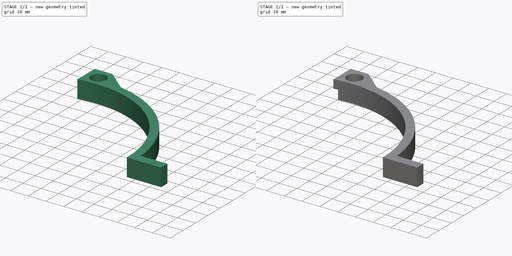
[diagram: build sequence overview — one tinted view per stage of 2, left to right]
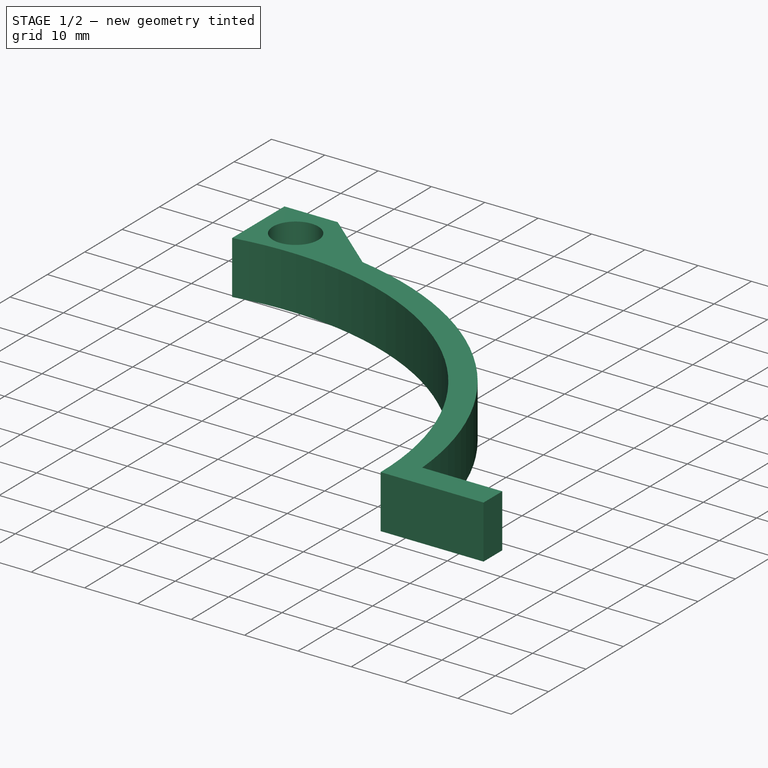
[diagram: stage 1 of 2 — iso view after this stage's code; geometry added in this stage tinted green]
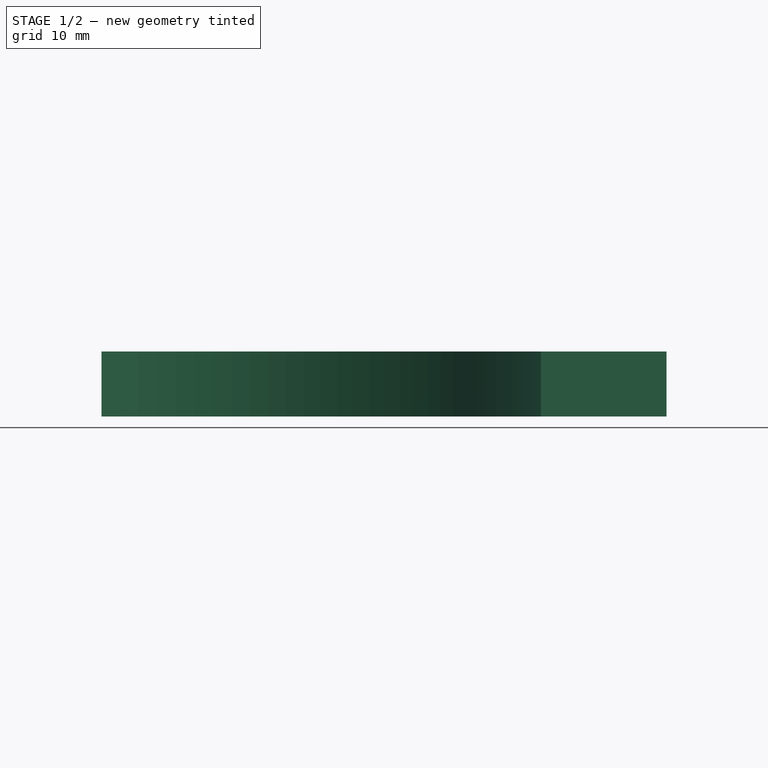
[diagram: stage 1 of 2 — front view after this stage's code; geometry added in this stage tinted green]
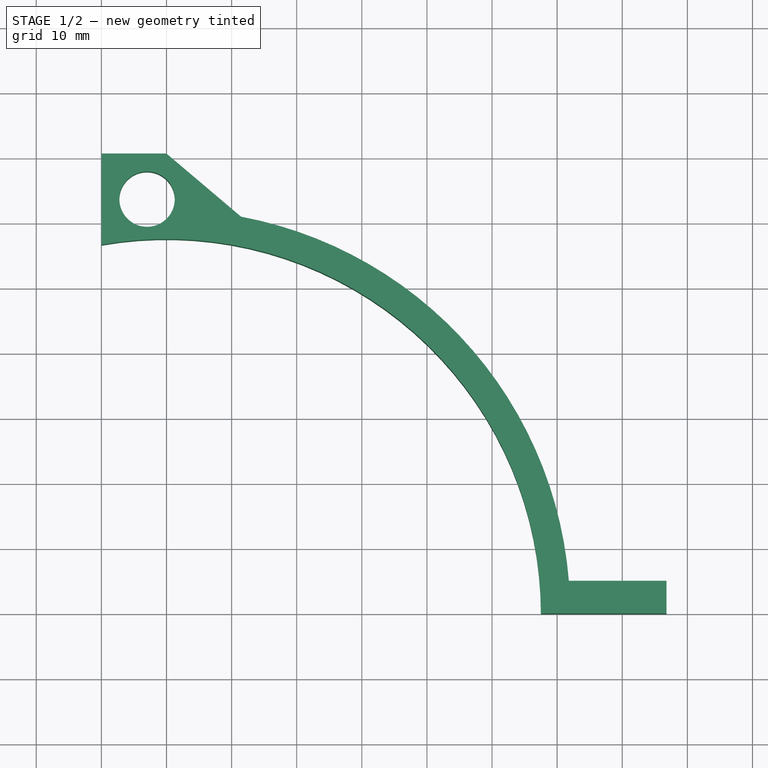
[diagram: stage 1 of 2 — top view after this stage's code; geometry added in this stage tinted green]
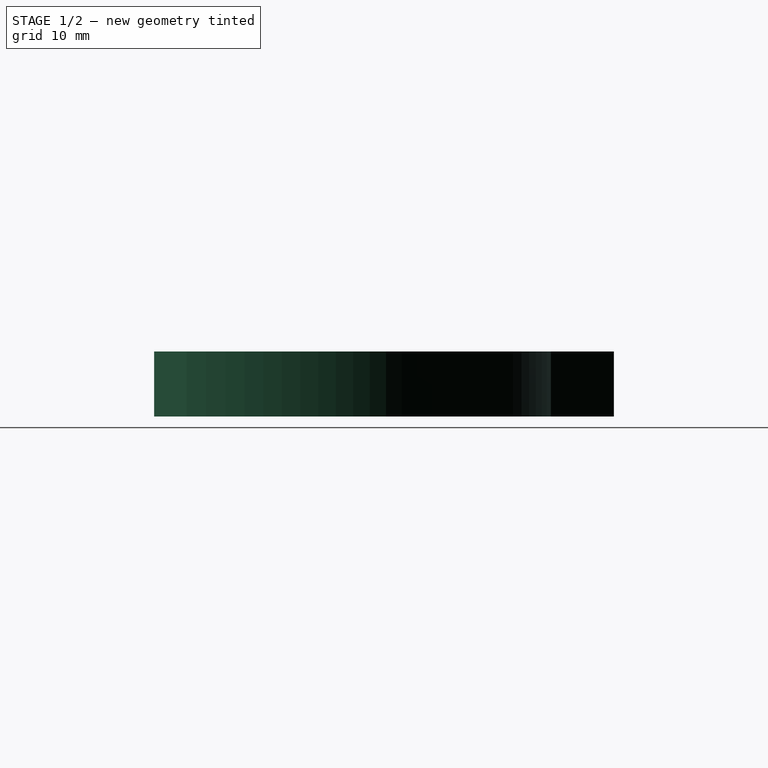
[diagram: stage 1 of 2 — right view after this stage's code; geometry added in this stage tinted green]
FCSTD DOCUMENT  (FreeCAD 1.0R39109 (Git))
Label: close_winds1
License: All rights reserved
LicenseURL: https://en.wikipedia.org/wiki/All_rights_reserved
objects: Sketcher::SketchObject×2, PartDesign::Pad×1, PartDesign::Pocket×1, PartDesign::Body×1
note: 11 computed .brp shape members not serialized (recipe doc carries the construction recipe); baked Part::Feature solids carry a one-line shape summary decoded from their .brp

FEATURE [Sketcher::SketchObject] Sketch
  ArcFitTolerance = 1e-06
  AttachmentSupport = -> [XY_Plane]
  FullyConstrained = true
  MakeInternals = false
  MapMode = 5
  sketch-geometry (9):
    g0: ArcOfCircle CenterX=0 CenterY=0 CenterZ=0 NormalX=0 NormalY=0 NormalZ=1 AngleXU=0 Radius=57.5 StartAngle=0 EndAngle=1.74533
    g1: ArcOfCircle CenterX=0 CenterY=0 CenterZ=0 NormalX=0 NormalY=0 NormalZ=1 AngleXU=0 Radius=62 StartAngle=0.0807328 EndAngle=1.38509
    g2: LineSegment StartX=-9.98477 StartY=56.6264 StartZ=0 EndX=-9.98477 EndY=70.6264 EndZ=0
    g3: Circle CenterX=-2.98477 CenterY=63.6264 CenterZ=0 NormalX=0 NormalY=0 NormalZ=1 AngleXU=0 Radius=4.25
    g4: LineSegment StartX=0 StartY=70.6264 StartZ=0 EndX=11.4479 EndY=60.9339 EndZ=0
    g5: LineSegment StartX=0 StartY=70.6264 StartZ=0 EndX=-9.98477 EndY=70.6264 EndZ=0
    g6: LineSegment StartX=61.7981 StartY=5 StartZ=0 EndX=76.7981 EndY=5 EndZ=0
    g7: LineSegment StartX=76.7981 StartY=5 StartZ=0 EndX=76.7981 EndY=0 EndZ=0
    g8: LineSegment StartX=76.7981 StartY=0 StartZ=0 EndX=57.5 EndY=0 EndZ=0
  constraints (27):
    c: PointOnObject(g0,g-1)
    c: Radius(g0) = 57.5
    c: Coincident(g1,g-1)
    c: Radius(g1) = 62
    c: Coincident(g0,g1)
    c: Coincident(g2,g0)
    c: Vertical(g2)
    c: Diameter(g3) = 8.5
    c: DistanceY(g3,g2) = 7
    c: DistanceX(g2,g3) = 7
    c: Coincident(g4,g1)
    c: Coincident(g5,g4)
    c: Coincident(g5,g2)
    c: Horizontal(g5)
    c: PointOnObject(g4,g-2)
    c: Angle(g0) = 1.74533
    c: DistanceY(g2,g2) = 14
    c: Distance(g4,g4) = 15
    c: Horizontal(g6)
    c: Coincident(g6,g7)
    c: PointOnObject(g7,g-1)
    c: Vertical(g7)
    c: Coincident(g7,g8)
    c: Coincident(g1,g6)
    c: DistanceY(g7,g7) = 5
    c: DistanceX(g6,g6) = 15
    c: Coincident(g8,g0)
FEATURE [PartDesign::Pad] Pad
  Direction = (0,0,1)
  Length = 10
  Length2 = 10
  Profile = -> Sketch
  ReferenceAxis = -> Sketch [N_Axis]
  Refine = true
  Suppressed = false
  Type = 0
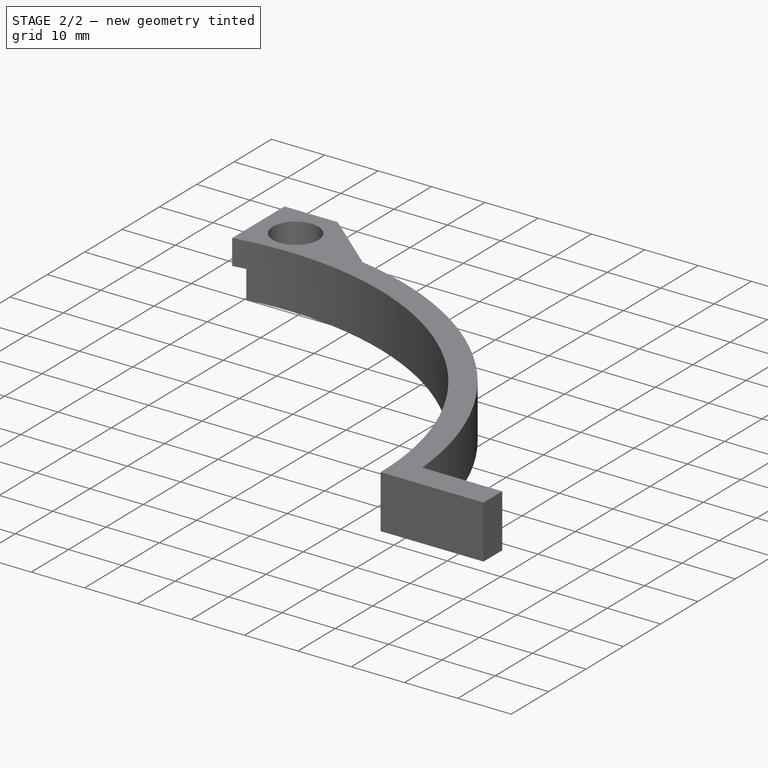
[diagram: stage 2 of 2 — iso view after this stage's code; geometry added in this stage tinted green]
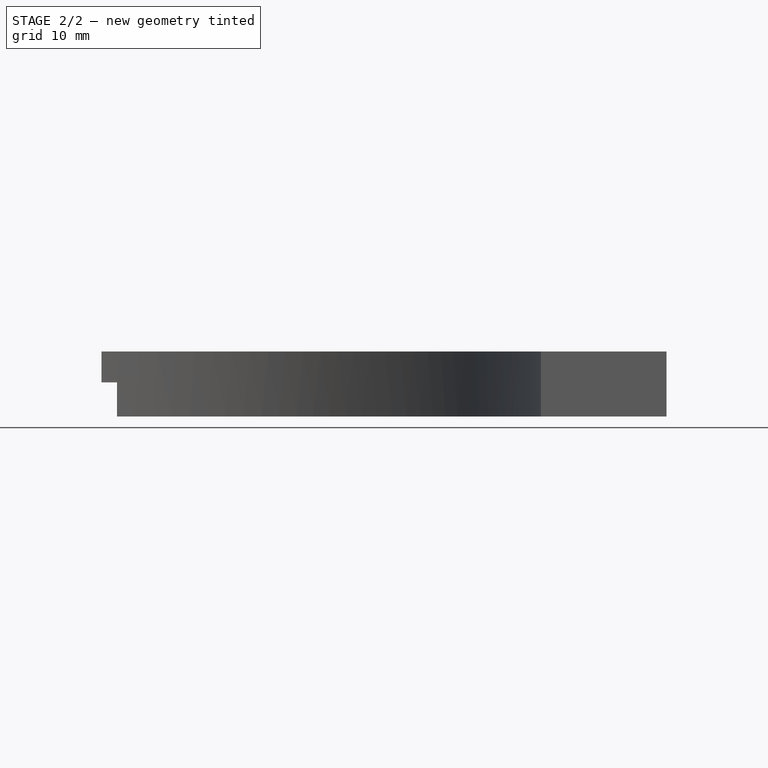
[diagram: stage 2 of 2 — front view after this stage's code; geometry added in this stage tinted green]
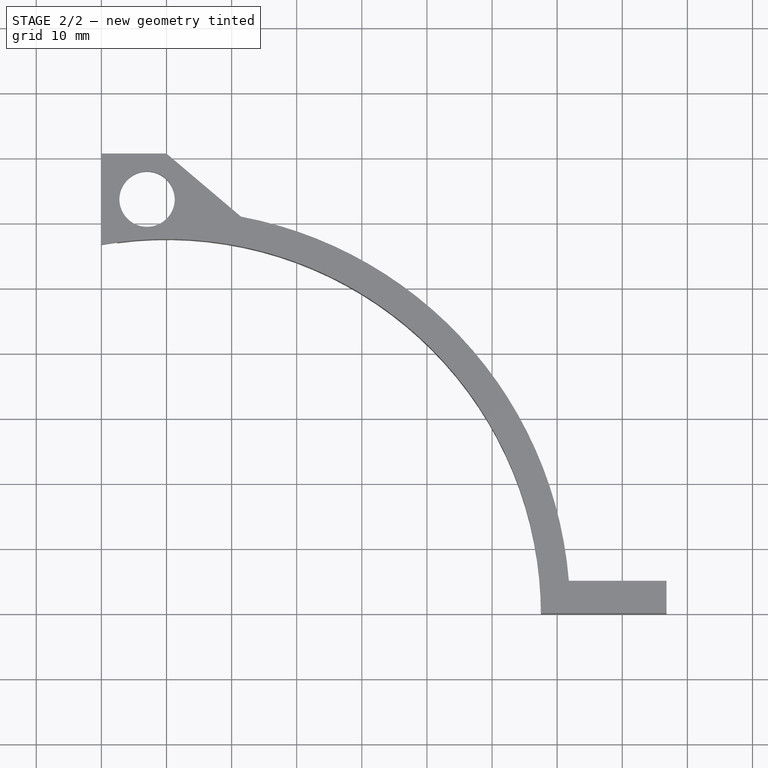
[diagram: stage 2 of 2 — top view after this stage's code; geometry added in this stage tinted green]
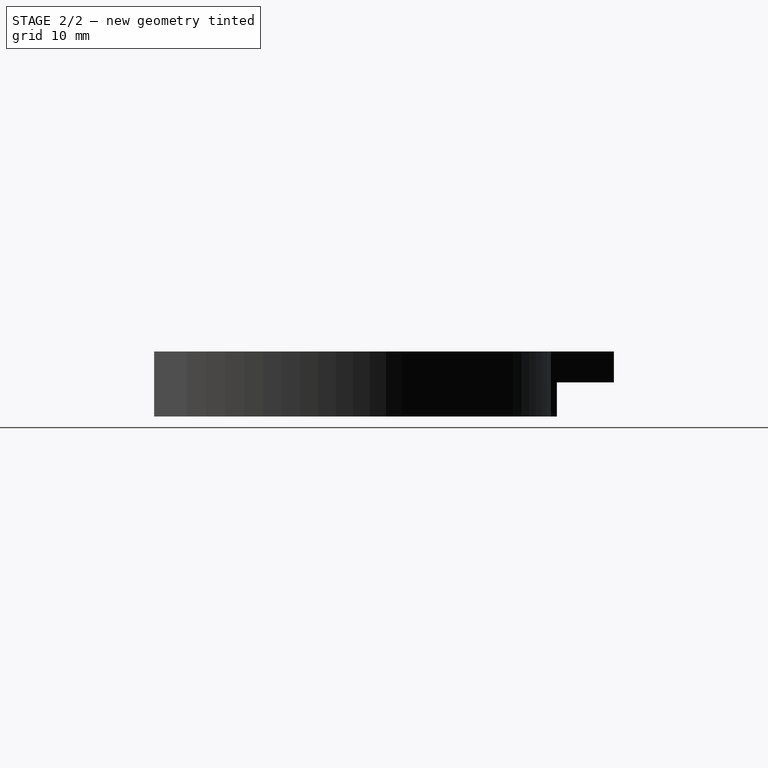
[diagram: stage 2 of 2 — right view after this stage's code; geometry added in this stage tinted green]
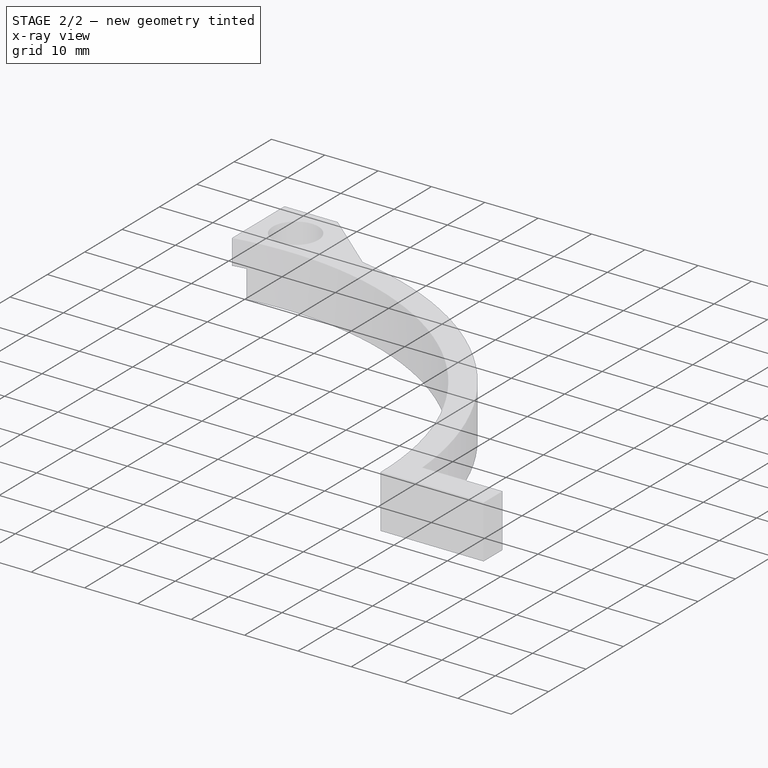
[diagram: stage 2 of 2 — x-ray composite at the iso view; earlier geometry ghosted, this stage's added geometry solid]
FEATURE [Sketcher::SketchObject] Sketch001
  ArcFitTolerance = 1e-06
  AttachmentSupport = -> [Pad]
  FullyConstrained = true
  MakeInternals = false
  MapMode = 5
  Placement = pos=(0,0,0) rot=(1,0,0;3.14159rad)
  sketch-geometry (5):
    g0: ArcOfCircle CenterX=5 CenterY=-5 CenterZ=0 NormalX=0 NormalY=0 NormalZ=1 AngleXU=0 Radius=53.5 StartAngle=4.42615 EndAngle=4.71239
    g1: LineSegment StartX=-10.1053 StartY=-56.3233 StartZ=0 EndX=-10.1053 EndY=-71.3233 EndZ=0
    g2: LineSegment StartX=-10.1053 StartY=-71.3233 StartZ=0 EndX=4.89473 EndY=-71.3233 EndZ=0
    g3: LineSegment StartX=5 StartY=-58.5 StartZ=0 EndX=11.7807 EndY=-62.7452 EndZ=0
    g4: LineSegment StartX=4.89473 StartY=-71.3233 StartZ=0 EndX=11.7807 EndY=-62.7452 EndZ=0
  constraints (16):
    c: DistanceY(g0,g-1) = 5
    c: DistanceX(g-1,g0) = 5
    c: Angle(g0) = 0.286234
    c: Vertical(g0,g0)
    c: Radius(g0) = 53.5
    c: Coincident(g0,g1)
    c: Coincident(g1,g2)
    c: Horizontal(g2)
    c: Vertical(g1)
    c: DistanceY(g1,g1) = 15
    c: Coincident(g3,g0)
    c: Coincident(g4,g2)
    c: Coincident(g4,g3)
    c: Distance(g3,g3) = 8
    c: Distance(g4,g4) = 11
    c: DistanceX(g2,g2) = 15
FEATURE [PartDesign::Pocket] Pocket
  BaseFeature = -> Pad
  Direction = (0,0,1)
  Length = 5.25
  Length2 = 5
  Profile = -> Sketch001
  ReferenceAxis = -> Sketch001 [N_Axis]
  Refine = true
  Suppressed = false
  Type = 0
FEATURE [PartDesign::Body] Body
  AllowCompound = false
  Group = -> [Sketch,Pad,Sketch001,Pocket]
  Origin = -> Origin
  Tip = -> Pocket
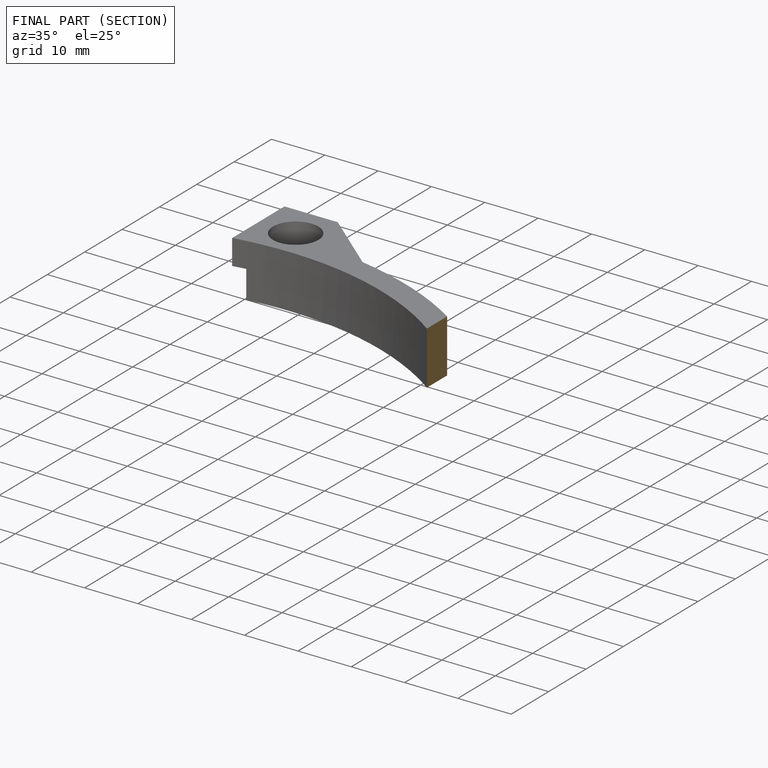
[diagram: finished part — half-section view (interior)]
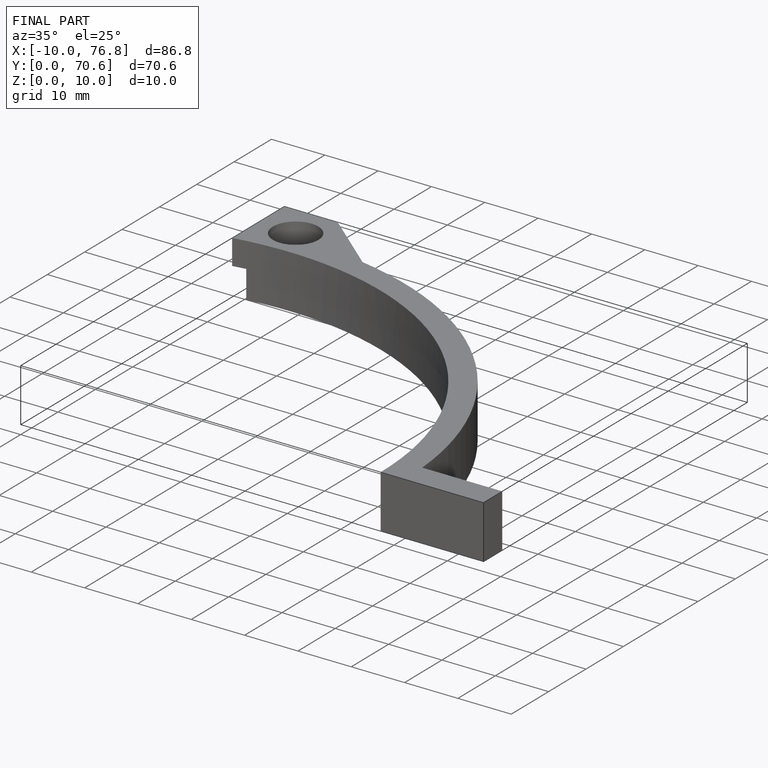
[diagram: finished part — iso view with bounding-box wireframe]
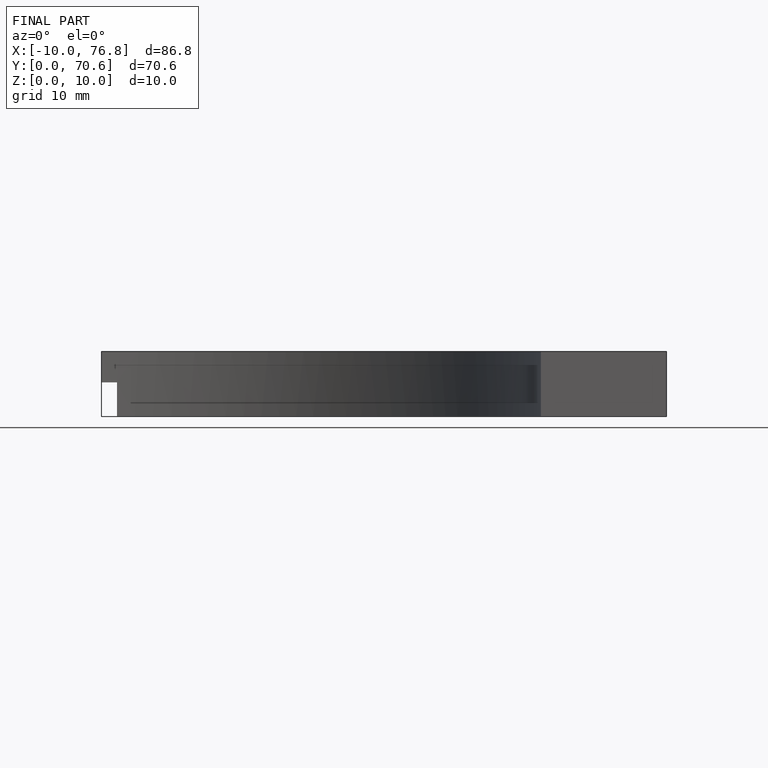
[diagram: finished part — front view with bounding-box wireframe]
